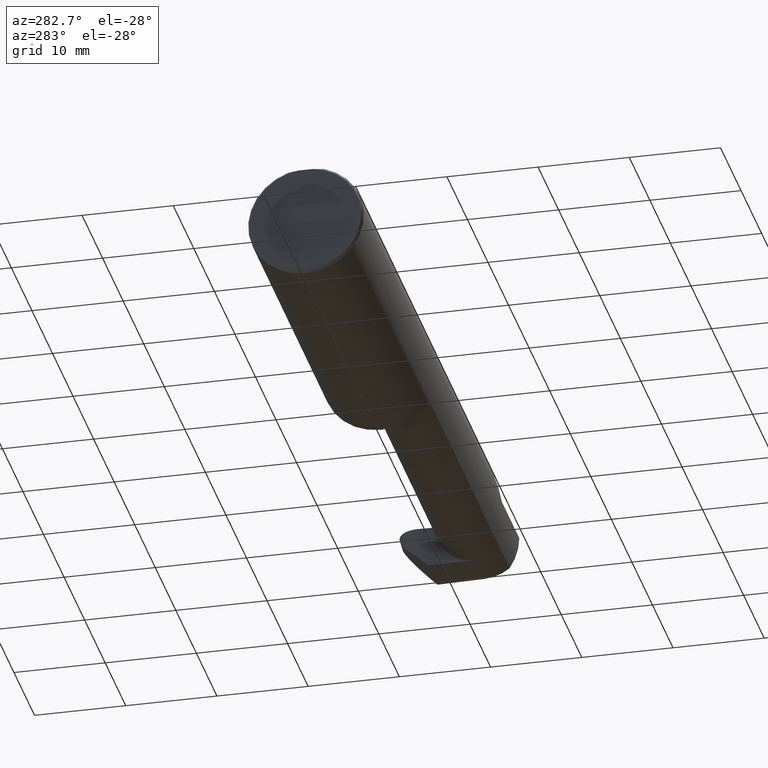
[diagram: clean part render]
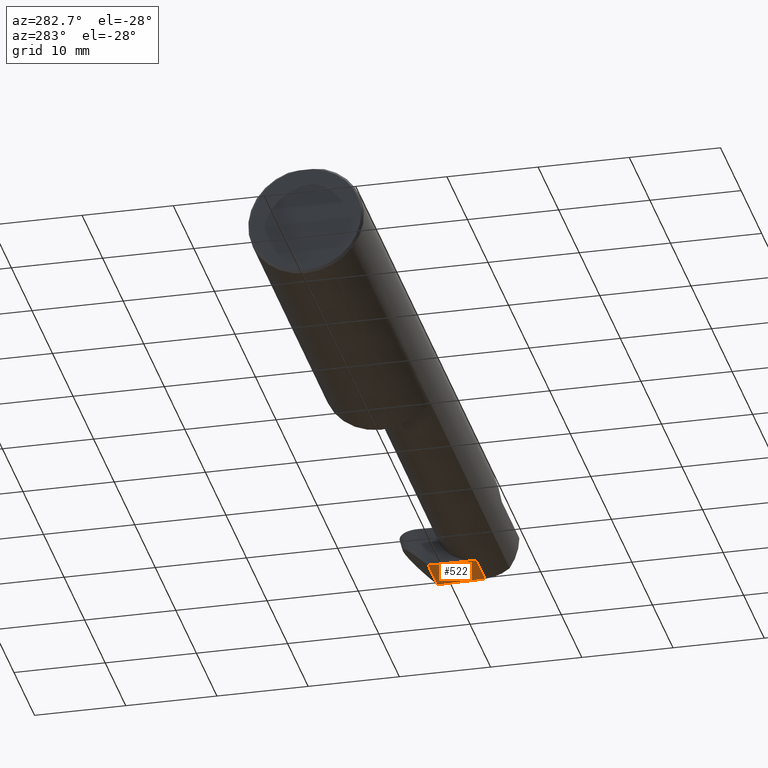
[diagram: same view with one face highlighted and labeled with its STEP entity id]
A machine part, auxiliary view. The second image highlights one B-rep face of the part: STEP entity #522.
In plain terms, the highlighted planar face has unit normal (-0, 0, 1).
Its self-contained STEP definition (entity closure, byte-faithful):
#7 = VECTOR ( 'NONE', #619, 39.37007874015748143 ) ;
#17 = CARTESIAN_POINT ( 'NONE',  ( 2.988136526189751230, -0.1008499999999999674, -0.1750000000000000722 ) ) ;
#27 = VERTEX_POINT ( 'NONE', #83 ) ;
#46 = LINE ( 'NONE', #73, #554 ) ;
#54 = VERTEX_POINT ( 'NONE', #250 ) ;
#65 = CARTESIAN_POINT ( 'NONE',  ( 2.816464084461495876, 0.1020094859694684469, -0.1750000000000001554 ) ) ;
#73 = CARTESIAN_POINT ( 'NONE',  ( 2.988640834071240260, -0.08640851177310844566, -0.1750000000000000722 ) ) ;
#74 = ORIENTED_EDGE ( 'NONE', *, *, #268, .T. ) ;
#83 = CARTESIAN_POINT ( 'NONE',  ( 2.817597862438286249, -0.1008500000000000368, -0.1750000000000000444 ) ) ;
#92 = VECTOR ( 'NONE', #221, 39.37007874015748143 ) ;
#98 = VERTEX_POINT ( 'NONE', #533 ) ;
#112 = EDGE_CURVE ( 'NONE', #704, #519, #578, .T. ) ;
#118 = CARTESIAN_POINT ( 'NONE',  ( 2.817597920595090955, -0.1010343856358530551, -0.1750000000000000722 ) ) ;
#150 = ORIENTED_EDGE ( 'NONE', *, *, #573, .T. ) ;
#171 = CARTESIAN_POINT ( 'NONE',  ( 2.816530679450678587, 0.1001024549918555218, -0.1750000000000001277 ) ) ;
#178 = VERTEX_POINT ( 'NONE', #323 ) ;
#180 = ORIENTED_EDGE ( 'NONE', *, *, #433, .T. ) ;
#181 =( BOUNDED_CURVE ( )  B_SPLINE_CURVE ( 3, ( #292, #617, #664, #454 ),
 .UNSPECIFIED., .F., .F. ) 
 B_SPLINE_CURVE_WITH_KNOTS ( ( 4, 4 ),
 ( 4.586414956270678189, 4.645220385064936508 ),
 .UNSPECIFIED. ) 
 CURVE ( )  GEOMETRIC_REPRESENTATION_ITEM ( )  RATIONAL_B_SPLINE_CURVE ( ( 1.000000000000000000, 0.9997118475557109640, 0.9997118475557109640, 1.000000000000000000 ) ) 
 REPRESENTATION_ITEM ( '' )  );
#221 = DIRECTION ( 'NONE',  ( -0.03489949670249350294, 0.9993908270190959842, -1.222058880457094394E-16 ) ) ;
#227 = CARTESIAN_POINT ( 'NONE',  ( 2.816493473585234053, 0.1058243371481696476, -0.1750000000000001277 ) ) ;
#250 = CARTESIAN_POINT ( 'NONE',  ( 2.995153940549321714, 0.1001024549918553275, -0.1750000000000001277 ) ) ;
#268 = EDGE_CURVE ( 'NONE', #54, #387, #46, .T. ) ;
#275 = VECTOR ( 'NONE', #398, 39.37007874015748854 ) ;
#280 = ORIENTED_EDGE ( 'NONE', *, *, #354, .T. ) ;
#282 = CARTESIAN_POINT ( 'NONE',  ( 2.816451678931664482, 0.1039173297714279937, -0.1750000000000001554 ) ) ;
#292 = CARTESIAN_POINT ( 'NONE',  ( 2.995191146414767136, 0.1058243371481696476, -0.1750000000000001277 ) ) ;
#307 = CARTESIAN_POINT ( 'NONE',  ( 2.816530679450678587, 0.1001024549918555218, -0.1750000000000001277 ) ) ;
#312 = CARTESIAN_POINT ( 'NONE',  ( -0.002039370078740339320, 0.1058243371481696476, -0.1750000000000001277 ) ) ;
#317 = EDGE_CURVE ( 'NONE', #178, #54, #181, .T. ) ;
#322 = DIRECTION ( 'NONE',  ( 1.000000000000000000, -0.000000000000000000, -0.000000000000000000 ) ) ;
#323 = CARTESIAN_POINT ( 'NONE',  ( 2.995191146414767136, 0.1058243371481696476, -0.1750000000000001277 ) ) ;
#349 = PLANE ( 'NONE',  #681 ) ;
#351 = CARTESIAN_POINT ( 'NONE',  ( 3.402190948718818664, -0.1008499999999999674, -0.1750000000000000722 ) ) ;
#354 = EDGE_CURVE ( 'NONE', #27, #704, #667, .T. ) ;
#366 = CARTESIAN_POINT ( 'NONE',  ( 2.824252866266283135, -0.1210320425578233494, -0.1750000000000000722 ) ) ;
#372 = VECTOR ( 'NONE', #322, 39.37007874015748143 ) ;
#387 = VERTEX_POINT ( 'NONE', #17 ) ;
#398 = DIRECTION ( 'NONE',  ( -0.0003154085283454421441, 0.9999999502587288980, -1.223178646569383192E-16 ) ) ;
#433 = EDGE_CURVE ( 'NONE', #519, #98, #577, .T. ) ;
#454 = CARTESIAN_POINT ( 'NONE',  ( 2.995153940549321714, 0.1001024549918553275, -0.1750000000000001277 ) ) ;
#501 = CARTESIAN_POINT ( 'NONE',  ( 3.402190948718818664, -0.1008499999999999674, -0.1750000000000000722 ) ) ;
#502 = DIRECTION ( 'NONE',  ( -0.03489949670249512664, -0.9993908270190959842, 1.222058880457094394E-16 ) ) ;
#503 = ORIENTED_EDGE ( 'NONE', *, *, #112, .T. ) ;
#514 = ORIENTED_EDGE ( 'NONE', *, *, #317, .T. ) ;
#519 = VERTEX_POINT ( 'NONE', #307 ) ;
#520 = DIRECTION ( 'NONE',  ( -0.000000000000000000, 1.223176342469858371E-16, 1.000000000000000000 ) ) ;
#522 = ADVANCED_FACE ( 'NONE', ( #591 ), #349, .F. ) ;
#533 = CARTESIAN_POINT ( 'NONE',  ( 2.816493473585234053, 0.1058243371481696476, -0.1750000000000001277 ) ) ;
#539 = LINE ( 'NONE', #312, #372 ) ;
#551 = EDGE_LOOP ( 'NONE', ( #503, #180, #150, #514, #74, #575, #280 ) ) ;
#554 = VECTOR ( 'NONE', #502, 39.37007874015748854 ) ;
#568 = LINE ( 'NONE', #501, #7 ) ;
#573 = EDGE_CURVE ( 'NONE', #98, #178, #539, .T. ) ;
#575 = ORIENTED_EDGE ( 'NONE', *, *, #689, .T. ) ;
#577 =( BOUNDED_CURVE ( )  B_SPLINE_CURVE ( 3, ( #171, #65, #282, #227 ),
 .UNSPECIFIED., .F., .T. ) 
 B_SPLINE_CURVE_WITH_KNOTS ( ( 4, 4 ),
 ( 1.637964922114649946, 1.696770350908906488 ),
 .UNSPECIFIED. ) 
 CURVE ( )  GEOMETRIC_REPRESENTATION_ITEM ( )  RATIONAL_B_SPLINE_CURVE ( ( 1.000000000000000000, 0.9997118475557110751, 0.9997118475557110751, 1.000000000000000000 ) ) 
 REPRESENTATION_ITEM ( '' )  );
#578 = LINE ( 'NONE', #366, #92 ) ;
#580 = DIRECTION ( 'NONE',  ( 0.000000000000000000, -1.000000000000000000, 1.223176342469858371E-16 ) ) ;
#591 = FACE_OUTER_BOUND ( 'NONE', #551, .T. ) ;
#611 = CARTESIAN_POINT ( 'NONE',  ( 2.817543629401487948, 0.07109536363756167876, -0.1750000000000000722 ) ) ;
#617 = CARTESIAN_POINT ( 'NONE',  ( 2.995232941068335375, 0.1039173297714279520, -0.1750000000000001277 ) ) ;
#619 = DIRECTION ( 'NONE',  ( -1.000000000000000000, -0.000000000000000000, -0.000000000000000000 ) ) ;
#664 = CARTESIAN_POINT ( 'NONE',  ( 2.995220535538503981, 0.1020094859694683359, -0.1750000000000001277 ) ) ;
#667 = LINE ( 'NONE', #118, #275 ) ;
#681 = AXIS2_PLACEMENT_3D ( 'NONE', #351, #520, #580 ) ;
#689 = EDGE_CURVE ( 'NONE', #387, #27, #568, .T. ) ;
#704 = VERTEX_POINT ( 'NONE', #611 ) ;